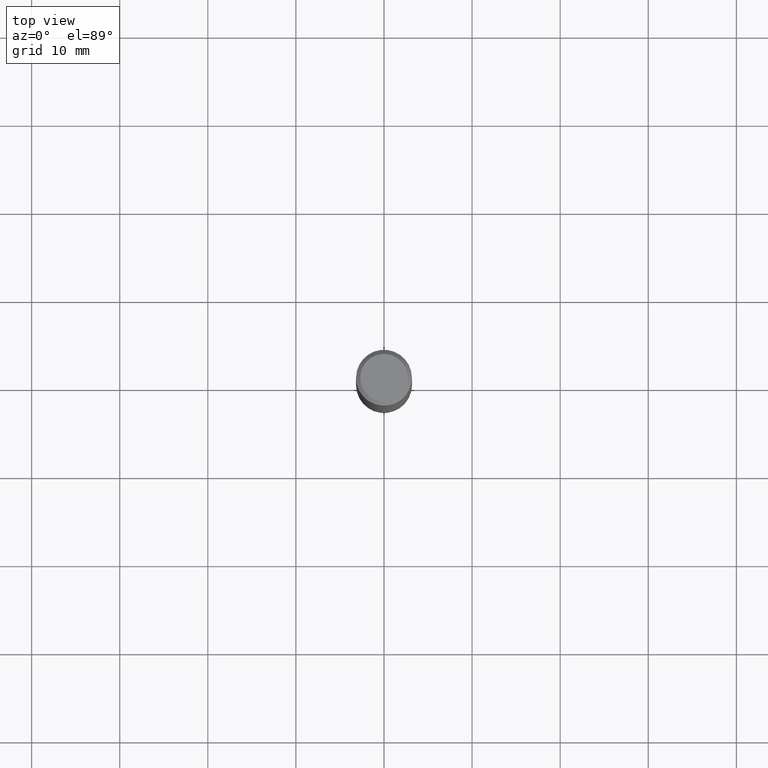
[diagram: clean part render]
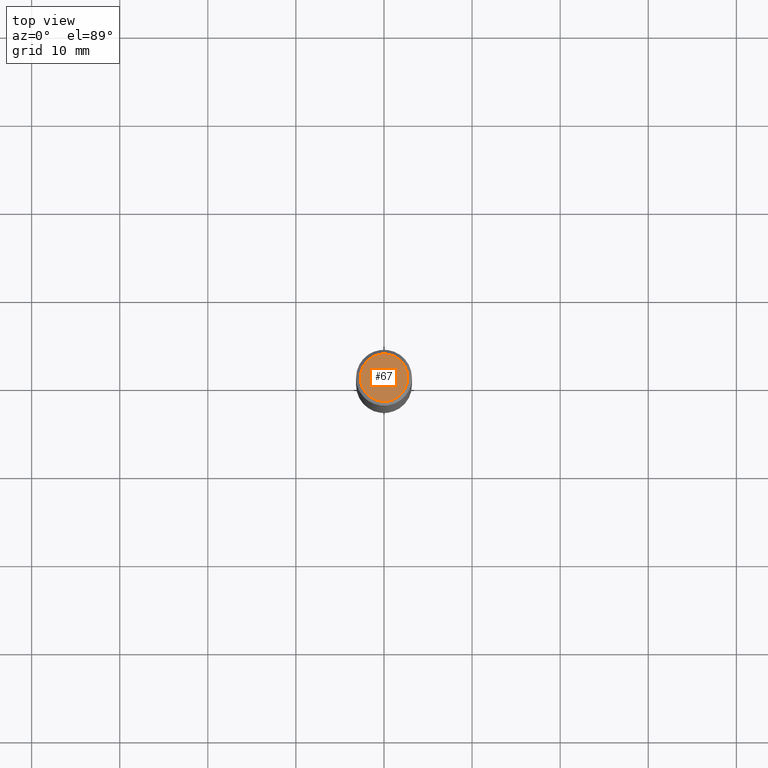
[diagram: same view with one face highlighted and labeled with its STEP entity id]
A machine part, top view. The second image highlights one B-rep face of the part: STEP entity #67.
In plain terms, the highlighted planar face has unit normal (0, -0, -1).
Its self-contained STEP definition (entity closure, byte-faithful):
#14 = FACE_OUTER_BOUND ( 'NONE', #33, .T. ) ;
#19 = DIRECTION ( 'NONE',  ( -1.000000000000000000, 6.982962677686265922E-15, -4.876176775795935793E-29 ) ) ;
#33 = EDGE_LOOP ( 'NONE', ( #319, #346 ) ) ;
#48 = DIRECTION ( 'NONE',  ( 1.000000000000000000, -6.982962677686266711E-15, 4.875930095424100059E-29 ) ) ;
#67 = ADVANCED_FACE ( 'NONE', ( #14 ), #431, .F. ) ;
#84 = DIRECTION ( 'NONE',  ( -2.445468806185136597E-29, 3.491481338843145583E-15, 1.000000000000000000 ) ) ;
#86 = EDGE_CURVE ( 'NONE', #450, #234, #158, .T. ) ;
#91 = AXIS2_PLACEMENT_3D ( 'NONE', #281, #84, #48 ) ;
#124 = DIRECTION ( 'NONE',  ( -2.445468806185136597E-29, 3.491481338843145583E-15, 1.000000000000000000 ) ) ;
#158 = CIRCLE ( 'NONE', #91, 0.1062499999999999972 ) ;
#160 = CARTESIAN_POINT ( 'NONE',  ( -7.955031918821654702E-47, 1.135767727816384474E-32, 3.252968060235159383E-18 ) ) ;
#172 = CARTESIAN_POINT ( 'NONE',  ( -0.1062499999999999972, 7.746724220558198188E-16, 6.505936120465015526E-18 ) ) ;
#228 = DIRECTION ( 'NONE',  ( 2.438088387897960049E-29, -3.491481338843145188E-15, -1.000000000000000000 ) ) ;
#233 = CIRCLE ( 'NONE', #492, 0.1062499999999999972 ) ;
#234 = VERTEX_POINT ( 'NONE', #172 ) ;
#243 = EDGE_CURVE ( 'NONE', #234, #450, #233, .T. ) ;
#260 = CARTESIAN_POINT ( 'NONE',  ( 0.1062499999999999972, -8.259777185439879685E-16, 6.505936120475800733E-18 ) ) ;
#281 = CARTESIAN_POINT ( 'NONE',  ( -1.591006383764330940E-46, 2.271535455632768948E-32, 6.505936120470318766E-18 ) ) ;
#319 = ORIENTED_EDGE ( 'NONE', *, *, #243, .T. ) ;
#329 = DIRECTION ( 'NONE',  ( 1.000000000000000000, -6.982962677686266711E-15, 4.875930095424100059E-29 ) ) ;
#346 = ORIENTED_EDGE ( 'NONE', *, *, #86, .T. ) ;
#431 = PLANE ( 'NONE',  #454 ) ;
#450 = VERTEX_POINT ( 'NONE', #260 ) ;
#454 = AXIS2_PLACEMENT_3D ( 'NONE', #160, #228, #19 ) ;
#483 = CARTESIAN_POINT ( 'NONE',  ( -1.591006383764330940E-46, 2.271535455632768948E-32, 6.505936120470318766E-18 ) ) ;
#492 = AXIS2_PLACEMENT_3D ( 'NONE', #483, #124, #329 ) ;